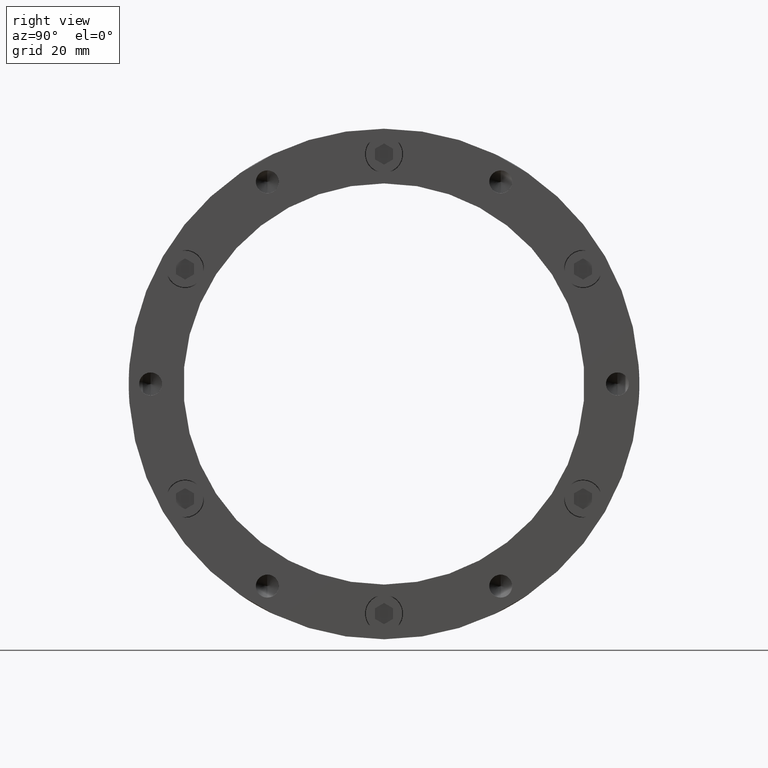
[diagram: clean part render]
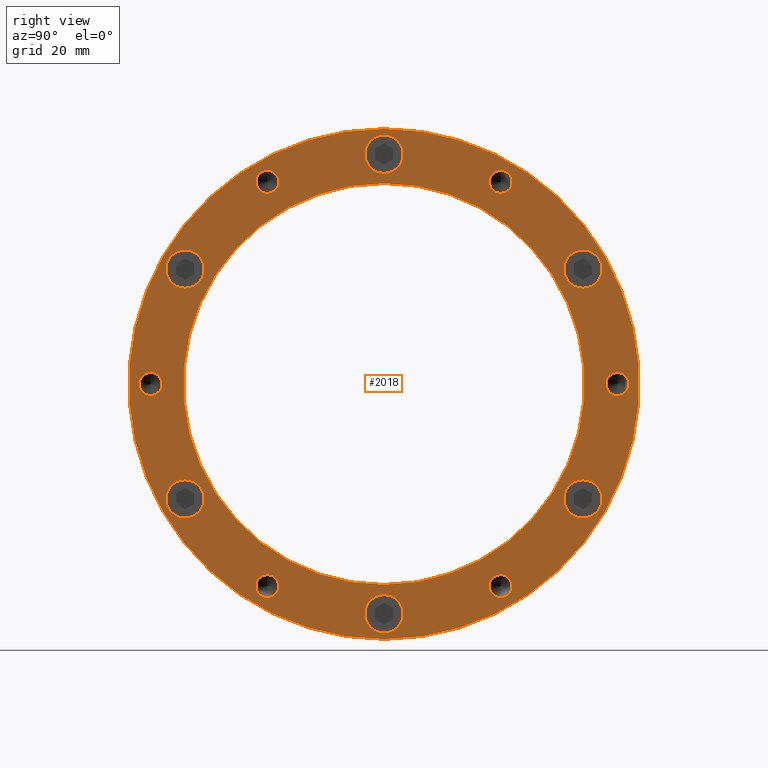
[diagram: same view with one face highlighted and labeled with its STEP entity id]
A machine part, right view. The second image highlights one B-rep face of the part: STEP entity #2018.
In plain terms, the highlighted planar face has unit normal (1, 0, 0).
Its self-contained STEP definition (entity closure, byte-faithful):
#90 = EDGE_LOOP ( 'NONE', ( #3093, #3090 ) ) ;
#91 = EDGE_LOOP ( 'NONE', ( #3095, #3094 ) ) ;
#92 = EDGE_LOOP ( 'NONE', ( #3097, #3096 ) ) ;
#93 = EDGE_LOOP ( 'NONE', ( #3099, #3098 ) ) ;
#94 = EDGE_LOOP ( 'NONE', ( #3101, #3100 ) ) ;
#95 = EDGE_LOOP ( 'NONE', ( #3103, #3102 ) ) ;
#96 = EDGE_LOOP ( 'NONE', ( #3105, #3104 ) ) ;
#97 = EDGE_LOOP ( 'NONE', ( #3107, #3106 ) ) ;
#98 = EDGE_LOOP ( 'NONE', ( #3115, #3114 ) ) ;
#99 = EDGE_LOOP ( 'NONE', ( #3113, #3112 ) ) ;
#100 = EDGE_LOOP ( 'NONE', ( #3111, #3110 ) ) ;
#101 = EDGE_LOOP ( 'NONE', ( #3117, #3116 ) ) ;
#103 = EDGE_LOOP ( 'NONE', ( #3109, #3108 ) ) ;
#104 = EDGE_LOOP ( 'NONE', ( #3119, #3118 ) ) ;
#275 = CIRCLE ( 'NONE', #1383, 5.250000000000000900 ) ;
#388 = CIRCLE ( 'NONE', #1393, 5.250000000000004400 ) ;
#393 = CIRCLE ( 'NONE', #1396, 3.149999999999999900 ) ;
#541 = AXIS2_PLACEMENT_3D ( 'NONE', #4052, #4048, #4054 ) ;
#773 = AXIS2_PLACEMENT_3D ( 'NONE', #2106, #2107, #2108 ) ;
#775 = AXIS2_PLACEMENT_3D ( 'NONE', #2103, #2104, #2105 ) ;
#776 = AXIS2_PLACEMENT_3D ( 'NONE', #2100, #2101, #2102 ) ;
#778 = AXIS2_PLACEMENT_3D ( 'NONE', #2094, #2095, #2096 ) ;
#782 = AXIS2_PLACEMENT_3D ( 'NONE', #4627, #4628, #4629 ) ;
#783 = AXIS2_PLACEMENT_3D ( 'NONE', #2073, #2074, #2075 ) ;
#784 = AXIS2_PLACEMENT_3D ( 'NONE', #2069, #2070, #2071 ) ;
#787 = AXIS2_PLACEMENT_3D ( 'NONE', #2060, #2061, #2062 ) ;
#791 = AXIS2_PLACEMENT_3D ( 'NONE', #2050, #2051, #2052 ) ;
#795 = AXIS2_PLACEMENT_3D ( 'NONE', #2038, #2039, #2040 ) ;
#796 = AXIS2_PLACEMENT_3D ( 'NONE', #4649, #4650, #4651 ) ;
#799 = AXIS2_PLACEMENT_3D ( 'NONE', #2028, #2029, #2030 ) ;
#800 = AXIS2_PLACEMENT_3D ( 'NONE', #4656, #4657, #4658 ) ;
#805 = AXIS2_PLACEMENT_3D ( 'NONE', #4667, #4668, #4669 ) ;
#807 = AXIS2_PLACEMENT_3D ( 'NONE', #4728, #4729, #4730 ) ;
#808 = AXIS2_PLACEMENT_3D ( 'NONE', #4723, #4724, #4725 ) ;
#809 = AXIS2_PLACEMENT_3D ( 'NONE', #4720, #4721, #4722 ) ;
#814 = AXIS2_PLACEMENT_3D ( 'NONE', #4705, #4706, #4707 ) ;
#815 = AXIS2_PLACEMENT_3D ( 'NONE', #4701, #4702, #4703 ) ;
#818 = AXIS2_PLACEMENT_3D ( 'NONE', #4691, #4692, #4693 ) ;
#819 = AXIS2_PLACEMENT_3D ( 'NONE', #4688, #4689, #4690 ) ;
#822 = AXIS2_PLACEMENT_3D ( 'NONE', #4675, #4676, #4677 ) ;
#832 = CIRCLE ( 'NONE', #773, 70.00000000000000000 ) ;
#833 = CIRCLE ( 'NONE', #775, 55.00000000000000000 ) ;
#834 = CIRCLE ( 'NONE', #776, 5.249999999999997300 ) ;
#836 = CIRCLE ( 'NONE', #778, 5.250000000000000900 ) ;
#851 = CIRCLE ( 'NONE', #783, 5.249999999999997300 ) ;
#856 = CIRCLE ( 'NONE', #784, 70.00000000000000000 ) ;
#862 = CIRCLE ( 'NONE', #787, 5.250000000000004400 ) ;
#868 = CIRCLE ( 'NONE', #791, 5.249999999999997300 ) ;
#876 = CIRCLE ( 'NONE', #795, 5.250000000000000900 ) ;
#882 = CIRCLE ( 'NONE', #1363, 3.149999999999999900 ) ;
#884 = CIRCLE ( 'NONE', #799, 3.149999999999999900 ) ;
#898 = CIRCLE ( 'NONE', #818, 3.149999999999999900 ) ;
#900 = CIRCLE ( 'NONE', #809, 3.149999999999999900 ) ;
#904 = CIRCLE ( 'NONE', #814, 3.149999999999999900 ) ;
#905 = CIRCLE ( 'NONE', #819, 3.149999999999999900 ) ;
#910 = CIRCLE ( 'NONE', #808, 3.149999999999999900 ) ;
#912 = CIRCLE ( 'NONE', #807, 3.149999999999999900 ) ;
#919 = CIRCLE ( 'NONE', #815, 3.149999999999999900 ) ;
#934 = CIRCLE ( 'NONE', #800, 5.249999999999997300 ) ;
#937 = CIRCLE ( 'NONE', #822, 5.250000000000000900 ) ;
#958 = CIRCLE ( 'NONE', #782, 55.00000000000000000 ) ;
#970 = CIRCLE ( 'NONE', #1366, 5.249999999999997300 ) ;
#974 = CIRCLE ( 'NONE', #796, 3.149999999999999900 ) ;
#978 = CIRCLE ( 'NONE', #1362, 5.249999999999997300 ) ;
#999 = CIRCLE ( 'NONE', #805, 3.149999999999999900 ) ;
#1058 = FACE_BOUND ( 'NONE', #101, .T. ) ;
#1063 = FACE_BOUND ( 'NONE', #96, .T. ) ;
#1075 = FACE_OUTER_BOUND ( 'NONE', #90, .T. ) ;
#1099 = FACE_BOUND ( 'NONE', #95, .T. ) ;
#1105 = FACE_BOUND ( 'NONE', #93, .T. ) ;
#1142 = FACE_BOUND ( 'NONE', #92, .T. ) ;
#1152 = FACE_BOUND ( 'NONE', #104, .T. ) ;
#1157 = FACE_BOUND ( 'NONE', #99, .T. ) ;
#1161 = VERTEX_POINT ( 'NONE', #3782 ) ;
#1194 = FACE_BOUND ( 'NONE', #98, .T. ) ;
#1225 = FACE_BOUND ( 'NONE', #103, .T. ) ;
#1233 = FACE_BOUND ( 'NONE', #94, .T. ) ;
#1245 = FACE_BOUND ( 'NONE', #97, .T. ) ;
#1246 = FACE_BOUND ( 'NONE', #100, .T. ) ;
#1248 = FACE_BOUND ( 'NONE', #91, .T. ) ;
#1362 = AXIS2_PLACEMENT_3D ( 'NONE', #4555, #4556, #4557 ) ;
#1363 = AXIS2_PLACEMENT_3D ( 'NONE', #4552, #4553, #4554 ) ;
#1366 = AXIS2_PLACEMENT_3D ( 'NONE', #4544, #4545, #4546 ) ;
#1383 = AXIS2_PLACEMENT_3D ( 'NONE', #4531, #4532, #4533 ) ;
#1393 = AXIS2_PLACEMENT_3D ( 'NONE', #4507, #4508, #4509 ) ;
#1396 = AXIS2_PLACEMENT_3D ( 'NONE', #4504, #4505, #4506 ) ;
#1736 = VERTEX_POINT ( 'NONE', #3785 ) ;
#1739 = VERTEX_POINT ( 'NONE', #3784 ) ;
#1740 = VERTEX_POINT ( 'NONE', #3788 ) ;
#1743 = VERTEX_POINT ( 'NONE', #3773 ) ;
#1744 = VERTEX_POINT ( 'NONE', #3790 ) ;
#1747 = VERTEX_POINT ( 'NONE', #3793 ) ;
#1748 = VERTEX_POINT ( 'NONE', #3794 ) ;
#1751 = VERTEX_POINT ( 'NONE', #3797 ) ;
#1752 = VERTEX_POINT ( 'NONE', #3798 ) ;
#1755 = VERTEX_POINT ( 'NONE', #3801 ) ;
#1756 = VERTEX_POINT ( 'NONE', #3802 ) ;
#1759 = VERTEX_POINT ( 'NONE', #3805 ) ;
#1760 = VERTEX_POINT ( 'NONE', #3806 ) ;
#1763 = VERTEX_POINT ( 'NONE', #3809 ) ;
#1764 = VERTEX_POINT ( 'NONE', #3810 ) ;
#1767 = VERTEX_POINT ( 'NONE', #3813 ) ;
#1768 = VERTEX_POINT ( 'NONE', #3814 ) ;
#1771 = VERTEX_POINT ( 'NONE', #3817 ) ;
#1772 = VERTEX_POINT ( 'NONE', #3818 ) ;
#1775 = VERTEX_POINT ( 'NONE', #3821 ) ;
#1776 = VERTEX_POINT ( 'NONE', #3822 ) ;
#1779 = VERTEX_POINT ( 'NONE', #3825 ) ;
#1780 = VERTEX_POINT ( 'NONE', #3826 ) ;
#1783 = VERTEX_POINT ( 'NONE', #3829 ) ;
#1784 = VERTEX_POINT ( 'NONE', #3830 ) ;
#1786 = VERTEX_POINT ( 'NONE', #3832 ) ;
#1787 = VERTEX_POINT ( 'NONE', #3833 ) ;
#2018 = ADVANCED_FACE ( 'NONE', ( #1152, #1058, #1194, #1157, #1246, #1225, #1245, #1063, #1099, #1233, #1105, #1142, #1248, #1075 ), #4053, .T. ) ;
#2028 = CARTESIAN_POINT ( 'NONE',  ( 31.99999999999998600, -32.00000000000004300, 55.42562584220404200 ) ) ;
#2029 = DIRECTION ( 'NONE',  ( -1.000000000000000000, -0.0000000000000000000, -0.0000000000000000000 ) ) ;
#2030 = DIRECTION ( 'NONE',  ( 0.0000000000000000000, 0.0000000000000000000, -1.000000000000000000 ) ) ;
#2038 = CARTESIAN_POINT ( 'NONE',  ( 31.99999999999998600, 54.55960043841969300, 31.49999999999997200 ) ) ;
#2039 = DIRECTION ( 'NONE',  ( -1.000000000000000000, -0.0000000000000000000, -0.0000000000000000000 ) ) ;
#2040 = DIRECTION ( 'NONE',  ( 0.0000000000000000000, 0.0000000000000000000, -1.000000000000000000 ) ) ;
#2050 = CARTESIAN_POINT ( 'NONE',  ( 31.99999999999998600, 54.55960043841965800, -31.50000000000005000 ) ) ;
#2051 = DIRECTION ( 'NONE',  ( -1.000000000000000000, -0.0000000000000000000, -0.0000000000000000000 ) ) ;
#2052 = DIRECTION ( 'NONE',  ( 0.0000000000000000000, 0.0000000000000000000, -1.000000000000000000 ) ) ;
#2060 = CARTESIAN_POINT ( 'NONE',  ( 31.99999999999998600, -8.881783999999999800E-015, -63.00000000000004300 ) ) ;
#2061 = DIRECTION ( 'NONE',  ( -1.000000000000000000, -0.0000000000000000000, -0.0000000000000000000 ) ) ;
#2062 = DIRECTION ( 'NONE',  ( 0.0000000000000000000, 0.0000000000000000000, -1.000000000000000000 ) ) ;
#2069 = CARTESIAN_POINT ( 'NONE',  ( 31.99999999999998600, 0.0000000000000000000, 0.0000000000000000000 ) ) ;
#2070 = DIRECTION ( 'NONE',  ( -1.000000000000000000, -0.0000000000000000000, -0.0000000000000000000 ) ) ;
#2071 = DIRECTION ( 'NONE',  ( 0.0000000000000000000, 0.0000000000000000000, -1.000000000000000000 ) ) ;
#2073 = CARTESIAN_POINT ( 'NONE',  ( 31.99999999999998600, -54.55960043841967900, -31.49999999999999300 ) ) ;
#2074 = DIRECTION ( 'NONE',  ( -1.000000000000000000, -0.0000000000000000000, -0.0000000000000000000 ) ) ;
#2075 = DIRECTION ( 'NONE',  ( 0.0000000000000000000, 0.0000000000000000000, -1.000000000000000000 ) ) ;
#2094 = CARTESIAN_POINT ( 'NONE',  ( 31.99999999999998600, -54.55960043841966500, 31.50000000000002800 ) ) ;
#2095 = DIRECTION ( 'NONE',  ( -1.000000000000000000, -0.0000000000000000000, -0.0000000000000000000 ) ) ;
#2096 = DIRECTION ( 'NONE',  ( 0.0000000000000000000, 0.0000000000000000000, -1.000000000000000000 ) ) ;
#2100 = CARTESIAN_POINT ( 'NONE',  ( 31.99999999999998600, 0.0000000000000000000, 63.00000000000004300 ) ) ;
#2101 = DIRECTION ( 'NONE',  ( -1.000000000000000000, -0.0000000000000000000, -0.0000000000000000000 ) ) ;
#2102 = DIRECTION ( 'NONE',  ( 0.0000000000000000000, 0.0000000000000000000, -1.000000000000000000 ) ) ;
#2103 = CARTESIAN_POINT ( 'NONE',  ( 31.99999999999998600, 0.0000000000000000000, 0.0000000000000000000 ) ) ;
#2104 = DIRECTION ( 'NONE',  ( -1.000000000000000000, -0.0000000000000000000, -0.0000000000000000000 ) ) ;
#2105 = DIRECTION ( 'NONE',  ( 0.0000000000000000000, 0.0000000000000000000, -1.000000000000000000 ) ) ;
#2106 = CARTESIAN_POINT ( 'NONE',  ( 31.99999999999998600, 0.0000000000000000000, 0.0000000000000000000 ) ) ;
#2107 = DIRECTION ( 'NONE',  ( -1.000000000000000000, -0.0000000000000000000, -0.0000000000000000000 ) ) ;
#2108 = DIRECTION ( 'NONE',  ( 0.0000000000000000000, 0.0000000000000000000, -1.000000000000000000 ) ) ;
#3090 = ORIENTED_EDGE ( 'NONE', *, *, #3567, .F. ) ;
#3093 = ORIENTED_EDGE ( 'NONE', *, *, #3582, .F. ) ;
#3094 = ORIENTED_EDGE ( 'NONE', *, *, #3537, .T. ) ;
#3095 = ORIENTED_EDGE ( 'NONE', *, *, #3471, .T. ) ;
#3096 = ORIENTED_EDGE ( 'NONE', *, *, #3536, .T. ) ;
#3097 = ORIENTED_EDGE ( 'NONE', *, *, #3451, .T. ) ;
#3098 = ORIENTED_EDGE ( 'NONE', *, *, #3535, .T. ) ;
#3099 = ORIENTED_EDGE ( 'NONE', *, *, #3508, .T. ) ;
#3100 = ORIENTED_EDGE ( 'NONE', *, *, #3529, .T. ) ;
#3101 = ORIENTED_EDGE ( 'NONE', *, *, #3515, .T. ) ;
#3102 = ORIENTED_EDGE ( 'NONE', *, *, #3528, .T. ) ;
#3103 = ORIENTED_EDGE ( 'NONE', *, *, #3524, .T. ) ;
#3104 = ORIENTED_EDGE ( 'NONE', *, *, #3523, .T. ) ;
#3105 = ORIENTED_EDGE ( 'NONE', *, *, #3550, .T. ) ;
#3106 = ORIENTED_EDGE ( 'NONE', *, *, #3517, .T. ) ;
#3107 = ORIENTED_EDGE ( 'NONE', *, *, #3554, .T. ) ;
#3108 = ORIENTED_EDGE ( 'NONE', *, *, #3511, .T. ) ;
#3109 = ORIENTED_EDGE ( 'NONE', *, *, #3559, .T. ) ;
#3110 = ORIENTED_EDGE ( 'NONE', *, *, #3452, .T. ) ;
#3111 = ORIENTED_EDGE ( 'NONE', *, *, #3563, .T. ) ;
#3112 = ORIENTED_EDGE ( 'NONE', *, *, #3472, .T. ) ;
#3113 = ORIENTED_EDGE ( 'NONE', *, *, #3568, .T. ) ;
#3114 = ORIENTED_EDGE ( 'NONE', *, *, #3578, .T. ) ;
#3115 = ORIENTED_EDGE ( 'NONE', *, *, #3461, .T. ) ;
#3116 = ORIENTED_EDGE ( 'NONE', *, *, #3580, .T. ) ;
#3117 = ORIENTED_EDGE ( 'NONE', *, *, #3467, .T. ) ;
#3118 = ORIENTED_EDGE ( 'NONE', *, *, #3581, .T. ) ;
#3119 = ORIENTED_EDGE ( 'NONE', *, *, #3499, .T. ) ;
#3451 = EDGE_CURVE ( 'NONE', #1740, #1739, #393, .T. ) ;
#3452 = EDGE_CURVE ( 'NONE', #1767, #1768, #388, .T. ) ;
#3461 = EDGE_CURVE ( 'NONE', #1776, #1775, #275, .T. ) ;
#3467 = EDGE_CURVE ( 'NONE', #1780, #1779, #970, .T. ) ;
#3471 = EDGE_CURVE ( 'NONE', #1736, #1161, #882, .T. ) ;
#3472 = EDGE_CURVE ( 'NONE', #1771, #1772, #978, .T. ) ;
#3499 = EDGE_CURVE ( 'NONE', #1784, #1783, #958, .T. ) ;
#3508 = EDGE_CURVE ( 'NONE', #1744, #1743, #974, .T. ) ;
#3511 = EDGE_CURVE ( 'NONE', #1763, #1764, #934, .T. ) ;
#3515 = EDGE_CURVE ( 'NONE', #1748, #1747, #999, .T. ) ;
#3517 = EDGE_CURVE ( 'NONE', #1759, #1760, #937, .T. ) ;
#3523 = EDGE_CURVE ( 'NONE', #1755, #1756, #905, .T. ) ;
#3524 = EDGE_CURVE ( 'NONE', #1752, #1751, #898, .T. ) ;
#3528 = EDGE_CURVE ( 'NONE', #1751, #1752, #919, .T. ) ;
#3529 = EDGE_CURVE ( 'NONE', #1747, #1748, #904, .T. ) ;
#3535 = EDGE_CURVE ( 'NONE', #1743, #1744, #900, .T. ) ;
#3536 = EDGE_CURVE ( 'NONE', #1739, #1740, #910, .T. ) ;
#3537 = EDGE_CURVE ( 'NONE', #1161, #1736, #912, .T. ) ;
#3550 = EDGE_CURVE ( 'NONE', #1756, #1755, #884, .T. ) ;
#3554 = EDGE_CURVE ( 'NONE', #1760, #1759, #876, .T. ) ;
#3559 = EDGE_CURVE ( 'NONE', #1764, #1763, #868, .T. ) ;
#3563 = EDGE_CURVE ( 'NONE', #1768, #1767, #862, .T. ) ;
#3567 = EDGE_CURVE ( 'NONE', #1787, #1786, #856, .T. ) ;
#3568 = EDGE_CURVE ( 'NONE', #1772, #1771, #851, .T. ) ;
#3578 = EDGE_CURVE ( 'NONE', #1775, #1776, #836, .T. ) ;
#3580 = EDGE_CURVE ( 'NONE', #1779, #1780, #834, .T. ) ;
#3581 = EDGE_CURVE ( 'NONE', #1783, #1784, #833, .T. ) ;
#3582 = EDGE_CURVE ( 'NONE', #1786, #1787, #832, .T. ) ;
#3773 = CARTESIAN_POINT ( 'NONE',  ( 31.99999999999998600, 32.00000000000003600, -52.27562584220404300 ) ) ;
#3782 = CARTESIAN_POINT ( 'NONE',  ( 31.99999999999998600, 31.99999999999999300, 58.57562584220406900 ) ) ;
#3784 = CARTESIAN_POINT ( 'NONE',  ( 31.99999999999998600, 63.99999999999998600, 3.150000000000022100 ) ) ;
#3785 = CARTESIAN_POINT ( 'NONE',  ( 31.99999999999998600, 31.99999999999999300, 52.27562584220407200 ) ) ;
#3788 = CARTESIAN_POINT ( 'NONE',  ( 31.99999999999998600, 63.99999999999998600, -3.149999999999977700 ) ) ;
#3790 = CARTESIAN_POINT ( 'NONE',  ( 31.99999999999998600, 32.00000000000003600, -58.57562584220404000 ) ) ;
#3793 = CARTESIAN_POINT ( 'NONE',  ( 31.99999999999998600, -31.99999999999995700, -52.27562584220408600 ) ) ;
#3794 = CARTESIAN_POINT ( 'NONE',  ( 31.99999999999998600, -31.99999999999995700, -58.57562584220408300 ) ) ;
#3797 = CARTESIAN_POINT ( 'NONE',  ( 31.99999999999998600, -63.99999999999998600, 3.149999999999951100 ) ) ;
#3798 = CARTESIAN_POINT ( 'NONE',  ( 31.99999999999998600, -63.99999999999998600, -3.150000000000049200 ) ) ;
#3801 = CARTESIAN_POINT ( 'NONE',  ( 31.99999999999998600, -32.00000000000004300, 58.57562584220404000 ) ) ;
#3802 = CARTESIAN_POINT ( 'NONE',  ( 31.99999999999998600, -32.00000000000004300, 52.27562584220404300 ) ) ;
#3805 = CARTESIAN_POINT ( 'NONE',  ( 31.99999999999998600, 54.55960043841969300, 36.74999999999997900 ) ) ;
#3806 = CARTESIAN_POINT ( 'NONE',  ( 31.99999999999998600, 54.55960043841969300, 26.24999999999997200 ) ) ;
#3809 = CARTESIAN_POINT ( 'NONE',  ( 31.99999999999998600, 54.55960043841965800, -26.25000000000004600 ) ) ;
#3810 = CARTESIAN_POINT ( 'NONE',  ( 31.99999999999998600, 54.55960043841965800, -36.75000000000005000 ) ) ;
#3813 = CARTESIAN_POINT ( 'NONE',  ( 31.99999999999998600, -8.238844430447640300E-015, -57.75000000000004300 ) ) ;
#3814 = CARTESIAN_POINT ( 'NONE',  ( 31.99999999999998600, -8.881783999999999800E-015, -68.25000000000004300 ) ) ;
#3817 = CARTESIAN_POINT ( 'NONE',  ( 31.99999999999998600, -54.55960043841967900, -26.24999999999999300 ) ) ;
#3818 = CARTESIAN_POINT ( 'NONE',  ( 31.99999999999998600, -54.55960043841967900, -36.74999999999999300 ) ) ;
#3821 = CARTESIAN_POINT ( 'NONE',  ( 31.99999999999998600, -54.55960043841966500, 36.75000000000003600 ) ) ;
#3822 = CARTESIAN_POINT ( 'NONE',  ( 31.99999999999998600, -54.55960043841966500, 26.25000000000002800 ) ) ;
#3825 = CARTESIAN_POINT ( 'NONE',  ( 31.99999999999998600, 6.429395695523600200E-016, 68.25000000000004300 ) ) ;
#3826 = CARTESIAN_POINT ( 'NONE',  ( 31.99999999999998600, 0.0000000000000000000, 57.75000000000004300 ) ) ;
#3829 = CARTESIAN_POINT ( 'NONE',  ( 31.99999999999998600, 6.735557395310442600E-015, 55.00000000000000000 ) ) ;
#3830 = CARTESIAN_POINT ( 'NONE',  ( 31.99999999999998600, 0.0000000000000000000, -55.00000000000000000 ) ) ;
#3832 = CARTESIAN_POINT ( 'NONE',  ( 31.99999999999998600, 0.0000000000000000000, -70.00000000000000000 ) ) ;
#3833 = CARTESIAN_POINT ( 'NONE',  ( 31.99999999999998600, 8.572527594031473000E-015, 70.00000000000000000 ) ) ;
#4048 = DIRECTION ( 'NONE',  ( 1.000000000000000000, -0.0000000000000000000, 0.0000000000000000000 ) ) ;
#4052 = CARTESIAN_POINT ( 'NONE',  ( 31.99999999999998600, 62.50000000000000000, 0.0000000000000000000 ) ) ;
#4053 = PLANE ( 'NONE',  #541 ) ;
#4054 = DIRECTION ( 'NONE',  ( 0.0000000000000000000, 0.0000000000000000000, -1.000000000000000000 ) ) ;
#4504 = CARTESIAN_POINT ( 'NONE',  ( 31.99999999999998600, 63.99999999999998600, 2.220446000000000100E-014 ) ) ;
#4505 = DIRECTION ( 'NONE',  ( -1.000000000000000000, -0.0000000000000000000, -0.0000000000000000000 ) ) ;
#4506 = DIRECTION ( 'NONE',  ( 0.0000000000000000000, 0.0000000000000000000, -1.000000000000000000 ) ) ;
#4507 = CARTESIAN_POINT ( 'NONE',  ( 31.99999999999998600, -8.881783999999999800E-015, -63.00000000000004300 ) ) ;
#4508 = DIRECTION ( 'NONE',  ( -1.000000000000000000, -0.0000000000000000000, -0.0000000000000000000 ) ) ;
#4509 = DIRECTION ( 'NONE',  ( 0.0000000000000000000, 0.0000000000000000000, -1.000000000000000000 ) ) ;
#4531 = CARTESIAN_POINT ( 'NONE',  ( 31.99999999999998600, -54.55960043841966500, 31.50000000000002800 ) ) ;
#4532 = DIRECTION ( 'NONE',  ( -1.000000000000000000, -0.0000000000000000000, -0.0000000000000000000 ) ) ;
#4533 = DIRECTION ( 'NONE',  ( 0.0000000000000000000, 0.0000000000000000000, -1.000000000000000000 ) ) ;
#4544 = CARTESIAN_POINT ( 'NONE',  ( 31.99999999999998600, 0.0000000000000000000, 63.00000000000004300 ) ) ;
#4545 = DIRECTION ( 'NONE',  ( -1.000000000000000000, -0.0000000000000000000, -0.0000000000000000000 ) ) ;
#4546 = DIRECTION ( 'NONE',  ( 0.0000000000000000000, 0.0000000000000000000, -1.000000000000000000 ) ) ;
#4552 = CARTESIAN_POINT ( 'NONE',  ( 31.99999999999998600, 31.99999999999999300, 55.42562584220407000 ) ) ;
#4553 = DIRECTION ( 'NONE',  ( -1.000000000000000000, -0.0000000000000000000, -0.0000000000000000000 ) ) ;
#4554 = DIRECTION ( 'NONE',  ( 0.0000000000000000000, 0.0000000000000000000, -1.000000000000000000 ) ) ;
#4555 = CARTESIAN_POINT ( 'NONE',  ( 31.99999999999998600, -54.55960043841967900, -31.49999999999999300 ) ) ;
#4556 = DIRECTION ( 'NONE',  ( -1.000000000000000000, -0.0000000000000000000, -0.0000000000000000000 ) ) ;
#4557 = DIRECTION ( 'NONE',  ( 0.0000000000000000000, 0.0000000000000000000, -1.000000000000000000 ) ) ;
#4627 = CARTESIAN_POINT ( 'NONE',  ( 31.99999999999998600, 0.0000000000000000000, 0.0000000000000000000 ) ) ;
#4628 = DIRECTION ( 'NONE',  ( -1.000000000000000000, -0.0000000000000000000, -0.0000000000000000000 ) ) ;
#4629 = DIRECTION ( 'NONE',  ( 0.0000000000000000000, 0.0000000000000000000, -1.000000000000000000 ) ) ;
#4649 = CARTESIAN_POINT ( 'NONE',  ( 31.99999999999998600, 32.00000000000003600, -55.42562584220404200 ) ) ;
#4650 = DIRECTION ( 'NONE',  ( -1.000000000000000000, -0.0000000000000000000, -0.0000000000000000000 ) ) ;
#4651 = DIRECTION ( 'NONE',  ( 0.0000000000000000000, 0.0000000000000000000, -1.000000000000000000 ) ) ;
#4656 = CARTESIAN_POINT ( 'NONE',  ( 31.99999999999998600, 54.55960043841965800, -31.50000000000005000 ) ) ;
#4657 = DIRECTION ( 'NONE',  ( -1.000000000000000000, -0.0000000000000000000, -0.0000000000000000000 ) ) ;
#4658 = DIRECTION ( 'NONE',  ( 0.0000000000000000000, 0.0000000000000000000, -1.000000000000000000 ) ) ;
#4667 = CARTESIAN_POINT ( 'NONE',  ( 31.99999999999998600, -31.99999999999995700, -55.42562584220408400 ) ) ;
#4668 = DIRECTION ( 'NONE',  ( -1.000000000000000000, -0.0000000000000000000, -0.0000000000000000000 ) ) ;
#4669 = DIRECTION ( 'NONE',  ( 0.0000000000000000000, 0.0000000000000000000, -1.000000000000000000 ) ) ;
#4675 = CARTESIAN_POINT ( 'NONE',  ( 31.99999999999998600, 54.55960043841969300, 31.49999999999997200 ) ) ;
#4676 = DIRECTION ( 'NONE',  ( -1.000000000000000000, -0.0000000000000000000, -0.0000000000000000000 ) ) ;
#4677 = DIRECTION ( 'NONE',  ( 0.0000000000000000000, 0.0000000000000000000, -1.000000000000000000 ) ) ;
#4688 = CARTESIAN_POINT ( 'NONE',  ( 31.99999999999998600, -32.00000000000004300, 55.42562584220404200 ) ) ;
#4689 = DIRECTION ( 'NONE',  ( -1.000000000000000000, -0.0000000000000000000, -0.0000000000000000000 ) ) ;
#4690 = DIRECTION ( 'NONE',  ( 0.0000000000000000000, 0.0000000000000000000, -1.000000000000000000 ) ) ;
#4691 = CARTESIAN_POINT ( 'NONE',  ( 31.99999999999998600, -63.99999999999998600, -4.884980999999999800E-014 ) ) ;
#4692 = DIRECTION ( 'NONE',  ( -1.000000000000000000, -0.0000000000000000000, -0.0000000000000000000 ) ) ;
#4693 = DIRECTION ( 'NONE',  ( 0.0000000000000000000, 0.0000000000000000000, -1.000000000000000000 ) ) ;
#4701 = CARTESIAN_POINT ( 'NONE',  ( 31.99999999999998600, -63.99999999999998600, -4.884980999999999800E-014 ) ) ;
#4702 = DIRECTION ( 'NONE',  ( -1.000000000000000000, -0.0000000000000000000, -0.0000000000000000000 ) ) ;
#4703 = DIRECTION ( 'NONE',  ( 0.0000000000000000000, 0.0000000000000000000, -1.000000000000000000 ) ) ;
#4705 = CARTESIAN_POINT ( 'NONE',  ( 31.99999999999998600, -31.99999999999995700, -55.42562584220408400 ) ) ;
#4706 = DIRECTION ( 'NONE',  ( -1.000000000000000000, -0.0000000000000000000, -0.0000000000000000000 ) ) ;
#4707 = DIRECTION ( 'NONE',  ( 0.0000000000000000000, 0.0000000000000000000, -1.000000000000000000 ) ) ;
#4720 = CARTESIAN_POINT ( 'NONE',  ( 31.99999999999998600, 32.00000000000003600, -55.42562584220404200 ) ) ;
#4721 = DIRECTION ( 'NONE',  ( -1.000000000000000000, -0.0000000000000000000, -0.0000000000000000000 ) ) ;
#4722 = DIRECTION ( 'NONE',  ( 0.0000000000000000000, 0.0000000000000000000, -1.000000000000000000 ) ) ;
#4723 = CARTESIAN_POINT ( 'NONE',  ( 31.99999999999998600, 63.99999999999998600, 2.220446000000000100E-014 ) ) ;
#4724 = DIRECTION ( 'NONE',  ( -1.000000000000000000, -0.0000000000000000000, -0.0000000000000000000 ) ) ;
#4725 = DIRECTION ( 'NONE',  ( 0.0000000000000000000, 0.0000000000000000000, -1.000000000000000000 ) ) ;
#4728 = CARTESIAN_POINT ( 'NONE',  ( 31.99999999999998600, 31.99999999999999300, 55.42562584220407000 ) ) ;
#4729 = DIRECTION ( 'NONE',  ( -1.000000000000000000, -0.0000000000000000000, -0.0000000000000000000 ) ) ;
#4730 = DIRECTION ( 'NONE',  ( 0.0000000000000000000, 0.0000000000000000000, -1.000000000000000000 ) ) ;